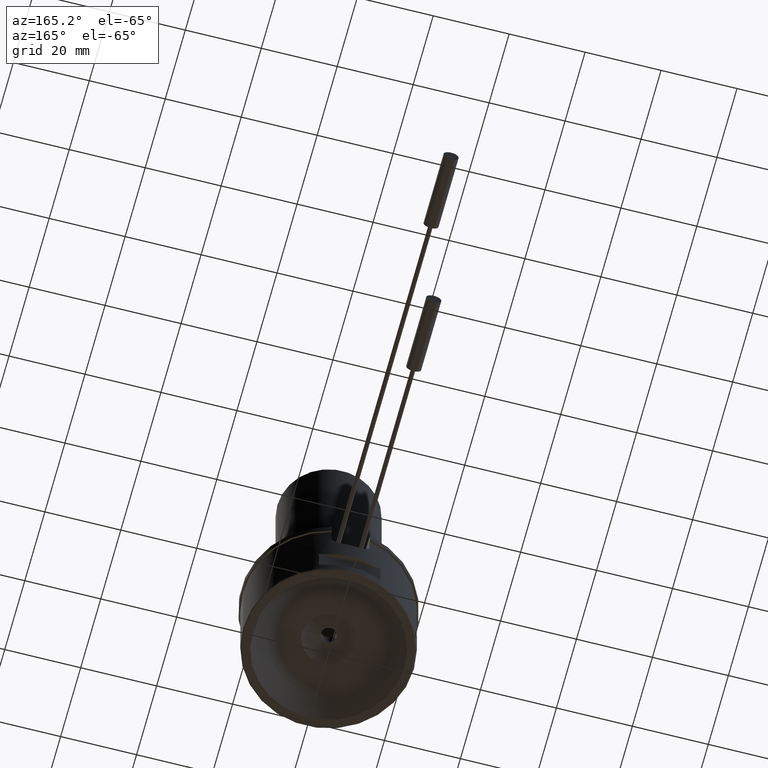
[diagram: clean part render]
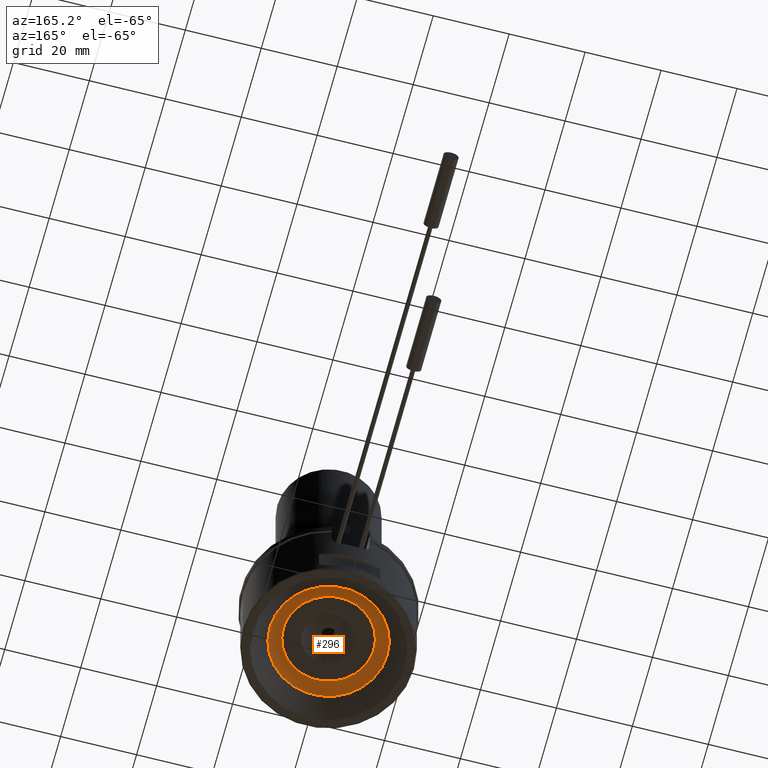
[diagram: same view with one face highlighted and labeled with its STEP entity id]
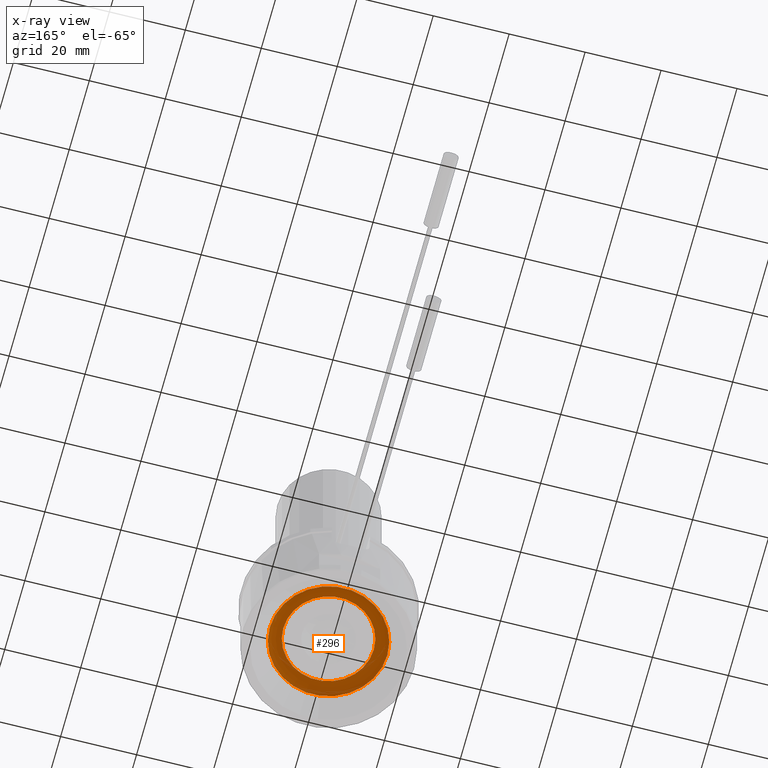
[diagram: x-ray of the same camera — body ghosted, the highlighted face saturated]
A machine part, auxiliary view. The second image highlights one B-rep face of the part: STEP entity #296.
The next image is the same camera in x-ray: the body ghosted, the highlighted face saturated — about 0% of this face is hidden behind the body in this view.
In plain terms, the highlighted toroidal blend (fillet) surface has major radius 11.9289 mm and minor (blend) radius 5 mm.
Its self-contained STEP definition (entity closure, byte-faithful):
#36=TOROIDAL_SURFACE('',#1066,11.9289321881346,5.);
#296=ADVANCED_FACE('',(#376,#377),#36,.F.);
#376=FACE_BOUND('',#446,.T.);
#377=FACE_BOUND('',#447,.T.);
#446=EDGE_LOOP('',(#597));
#447=EDGE_LOOP('',(#598));
#597=ORIENTED_EDGE('',*,*,#894,.F.);
#598=ORIENTED_EDGE('',*,*,#899,.F.);
#796=VERTEX_POINT('',#1652);
#801=VERTEX_POINT('',#1667);
#894=EDGE_CURVE('',#796,#796,#974,.T.);
#899=EDGE_CURVE('',#801,#801,#979,.T.);
#974=CIRCLE('',#1054,15.4644660940673);
#979=CIRCLE('',#1064,11.9289321881346);
#1054=AXIS2_PLACEMENT_3D('',#1651,#1266,#1267);
#1064=AXIS2_PLACEMENT_3D('',#1666,#1286,#1287);
#1066=AXIS2_PLACEMENT_3D('',#1669,#1290,#1291);
#1266=DIRECTION('',(0.,0.,1.));
#1267=DIRECTION('',(-1.,0.,0.));
#1286=DIRECTION('',(0.,0.,-1.));
#1287=DIRECTION('',(1.,0.,0.));
#1290=DIRECTION('',(0.,0.,1.));
#1291=DIRECTION('',(1.,0.,0.));
#1651=CARTESIAN_POINT('',(0.,0.,4.5355339059327));
#1652=CARTESIAN_POINT('',(-15.4644660940673,0.,4.5355339059327));
#1666=CARTESIAN_POINT('',(0.,0.,5.99999999999997));
#1667=CARTESIAN_POINT('',(11.9289321881346,0.,5.99999999999997));
#1669=CARTESIAN_POINT('',(0.,0.,0.999999999999968));